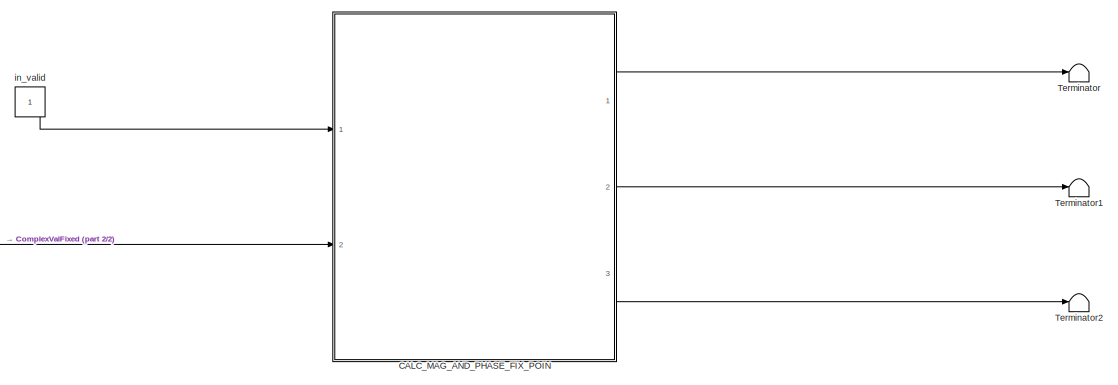
[diagram: root canvas - part 1/2, top center region]
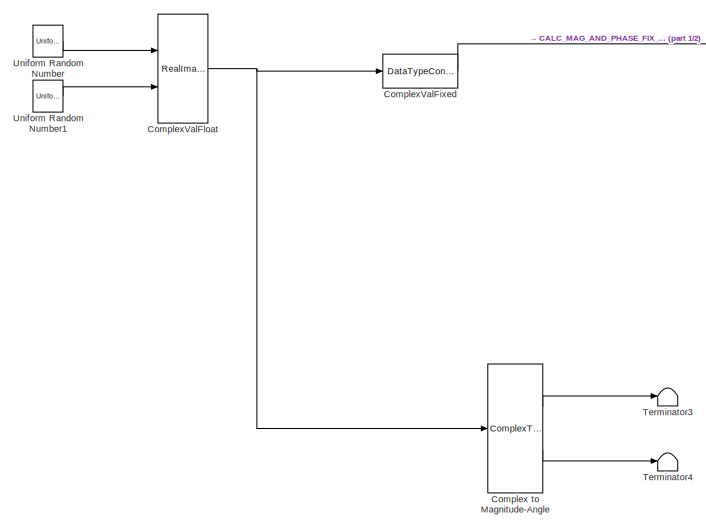
[diagram: root canvas - part 2/2, middle left region]
MODEL slx_608fe25c7896
KIND model
CONFIG AbsTol = auto
CONFIG EnableMultiTasking = off
CONFIG FixedStep = auto
CONFIG MaxStep = auto
CONFIG MinStep = auto
CONFIG RelTol = 1e-3
CONFIG SampleTimeConstraint = Unconstrained
CONFIG SolverName = VariableStepAuto
CONFIG StartTime = 0.0
CONFIG StopTime = 5.0
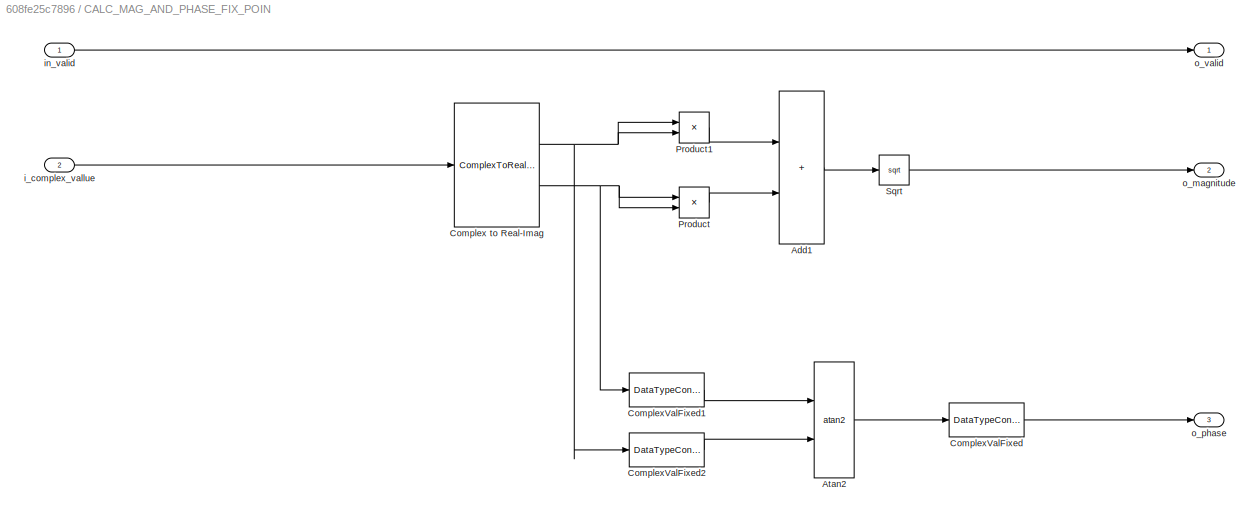
BLOCK [SubSystem] CALC_MAG_AND_PHASE_FIX_POIN
  Ports = [2, 3]
  RequestExecContextInheritance = off
BLOCK [Sum] CALC_MAG_AND_PHASE_FIX_POIN/Add1
  AccumDataTypeStr = fixdt(0,65,32)
  IconShape = rectangular
  OutDataTypeStr = fixdt(0,65,32)
  Ports = [2, 1]
BLOCK [Trigonometry] CALC_MAG_AND_PHASE_FIX_POIN/Atan2
  ApproximationMethod = CORDIC
  Operator = atan2
  Ports = [2, 1]
BLOCK [ComplexToRealImag] CALC_MAG_AND_PHASE_FIX_POIN/Complex to Real-Imag
  Ports = [1, 2]
BLOCK [DataTypeConversion] CALC_MAG_AND_PHASE_FIX_POIN/ComplexValFixed
  OutDataTypeStr = fixdt(0,16,13)
  RndMeth = Round
  SaturateOnIntegerOverflow = off
BLOCK [DataTypeConversion] CALC_MAG_AND_PHASE_FIX_POIN/ComplexValFixed1
  OutDataTypeStr = fixdt(1,33,16)
  RndMeth = Round
  SaturateOnIntegerOverflow = off
BLOCK [DataTypeConversion] CALC_MAG_AND_PHASE_FIX_POIN/ComplexValFixed2
  OutDataTypeStr = fixdt(1,33,16)
  RndMeth = Round
  SaturateOnIntegerOverflow = off
BLOCK [Product] CALC_MAG_AND_PHASE_FIX_POIN/Product
  Ports = [2, 1]
BLOCK [Product] CALC_MAG_AND_PHASE_FIX_POIN/Product1
  Ports = [2, 1]
BLOCK [Sqrt] CALC_MAG_AND_PHASE_FIX_POIN/Sqrt
  OutDataTypeStr = Inherit: Inherit via internal rule
BLOCK [Inport] CALC_MAG_AND_PHASE_FIX_POIN/i_complex_vallue
  Port = 2
BLOCK [Inport] CALC_MAG_AND_PHASE_FIX_POIN/in_valid
  OutDataTypeStr = boolean
BLOCK [Outport] CALC_MAG_AND_PHASE_FIX_POIN/o_magnitude
  Port = 2
BLOCK [Outport] CALC_MAG_AND_PHASE_FIX_POIN/o_phase
  IconDisplay = Port number and signal name
  Port = 3
  SignalType = real
  VarSizeSig = No
BLOCK [Outport] CALC_MAG_AND_PHASE_FIX_POIN/o_valid
BLOCK [ComplexToMagnitudeAngle] Complex to Magnitude-Angle
  Ports = [1, 2]
BLOCK [DataTypeConversion] ComplexValFixed
  OutDataTypeStr = fixdt(0,32,16)
  RndMeth = Round
  SaturateOnIntegerOverflow = off
BLOCK [RealImagToComplex] ComplexValFloat
  Ports = [2, 1]
BLOCK [Terminator] Terminator
BLOCK [Terminator] Terminator1
BLOCK [Terminator] Terminator2
BLOCK [Terminator] Terminator3
BLOCK [Terminator] Terminator4
BLOCK [UniformRandomNumber] Uniform Random Number
  Maximum = 2 ^(16)-1
  Minimum = 0
  SampleTime = 1
  Seed = 16
BLOCK [UniformRandomNumber] Uniform Random Number1
  Maximum = 2 ^(16)-1
  Minimum = 0
  SampleTime = 1
  Seed = 17
BLOCK [Constant] in_valid
  OutDataTypeStr = boolean
  SampleTime = 1
LINE CALC_MAG_AND_PHASE_FIX_POIN/Add1:1 -> CALC_MAG_AND_PHASE_FIX_POIN/Sqrt:1
LINE CALC_MAG_AND_PHASE_FIX_POIN/Atan2:1 -> CALC_MAG_AND_PHASE_FIX_POIN/ComplexValFixed:1
NET CALC_MAG_AND_PHASE_FIX_POIN/Complex to Real-Imag:1 -> CALC_MAG_AND_PHASE_FIX_POIN/ComplexValFixed2:1, CALC_MAG_AND_PHASE_FIX_POIN/Product1:1, CALC_MAG_AND_PHASE_FIX_POIN/Product1:2
NET CALC_MAG_AND_PHASE_FIX_POIN/Complex to Real-Imag:2 -> CALC_MAG_AND_PHASE_FIX_POIN/ComplexValFixed1:1, CALC_MAG_AND_PHASE_FIX_POIN/Product:1, CALC_MAG_AND_PHASE_FIX_POIN/Product:2
LINE CALC_MAG_AND_PHASE_FIX_POIN/ComplexValFixed1:1 -> CALC_MAG_AND_PHASE_FIX_POIN/Atan2:1
LINE CALC_MAG_AND_PHASE_FIX_POIN/ComplexValFixed2:1 -> CALC_MAG_AND_PHASE_FIX_POIN/Atan2:2
LINE CALC_MAG_AND_PHASE_FIX_POIN/ComplexValFixed:1 -> CALC_MAG_AND_PHASE_FIX_POIN/o_phase:1
LINE CALC_MAG_AND_PHASE_FIX_POIN/Product1:1 -> CALC_MAG_AND_PHASE_FIX_POIN/Add1:1
LINE CALC_MAG_AND_PHASE_FIX_POIN/Product:1 -> CALC_MAG_AND_PHASE_FIX_POIN/Add1:2
LINE CALC_MAG_AND_PHASE_FIX_POIN/Sqrt:1 -> CALC_MAG_AND_PHASE_FIX_POIN/o_magnitude:1
LINE CALC_MAG_AND_PHASE_FIX_POIN/i_complex_vallue:1 -> CALC_MAG_AND_PHASE_FIX_POIN/Complex to Real-Imag:1
LINE CALC_MAG_AND_PHASE_FIX_POIN/in_valid:1 -> CALC_MAG_AND_PHASE_FIX_POIN/o_valid:1
LINE CALC_MAG_AND_PHASE_FIX_POIN:1 -> Terminator:1
LINE CALC_MAG_AND_PHASE_FIX_POIN:2 -> Terminator1:1
LINE CALC_MAG_AND_PHASE_FIX_POIN:3 -> Terminator2:1
LINE Complex to Magnitude-Angle:1 -> Terminator3:1
LINE Complex to Magnitude-Angle:2 -> Terminator4:1
LINE ComplexValFixed:1 -> CALC_MAG_AND_PHASE_FIX_POIN:2
NET ComplexValFloat:1 -> Complex to Magnitude-Angle:1, ComplexValFixed:1
LINE Uniform Random Number1:1 -> ComplexValFloat:2
LINE Uniform Random Number:1 -> ComplexValFloat:1
LINE in_valid:1 -> CALC_MAG_AND_PHASE_FIX_POIN:1
note: NET lines group one-source signal fan-out (src -> all destinations, sorted); 1:1 wires keep LINE
